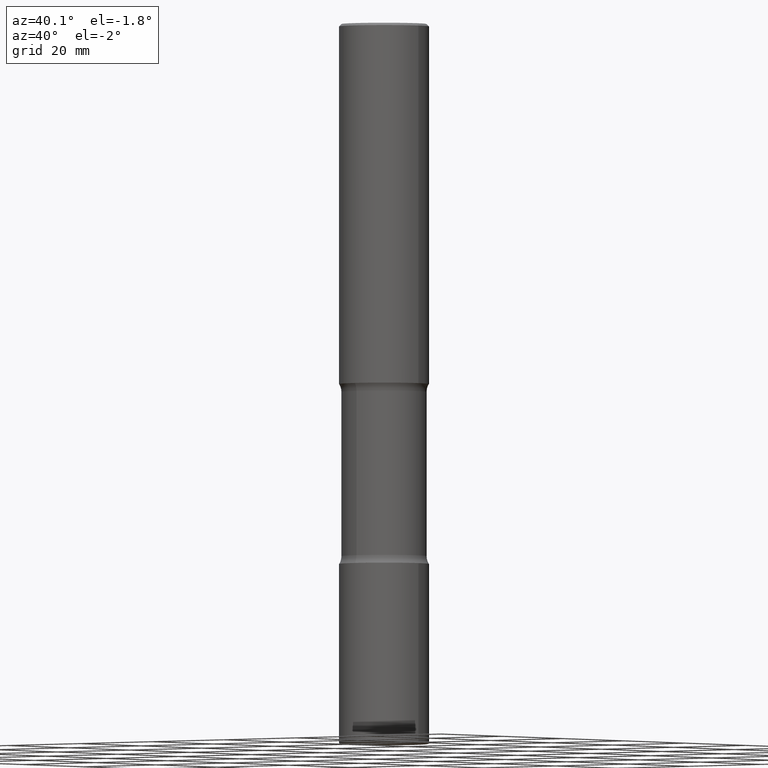
[diagram: clean part render]
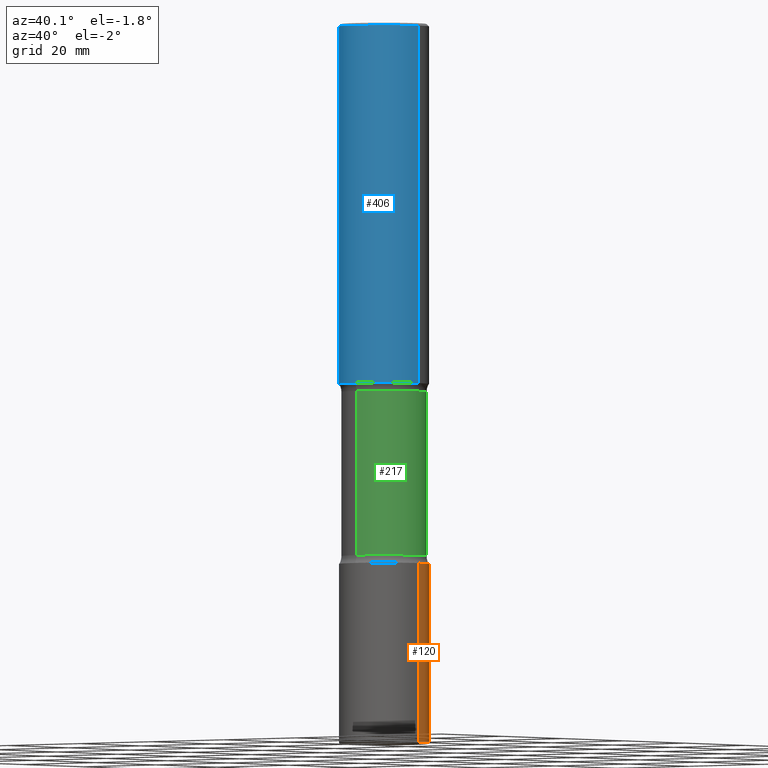
[diagram: same view with three faces highlighted in distinct colors, each labeled with its STEP entity id]
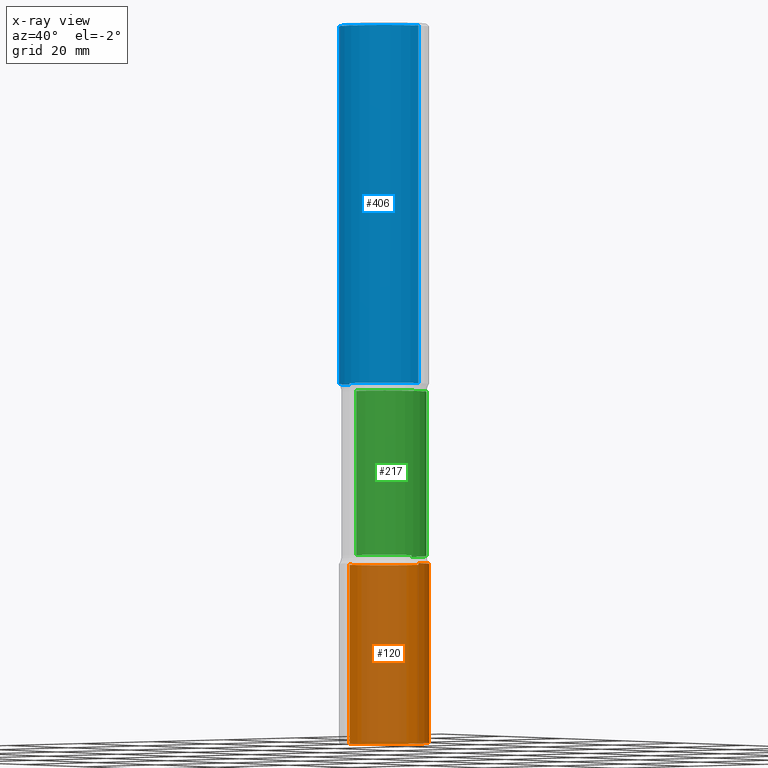
[diagram: x-ray of the same camera — body ghosted, the three highlighted faces saturated]
A machine part, auxiliary view with three faces highlighted in distinct colors.
The next image is the same camera in x-ray (body ghosted, the three faces saturated) — at least one of them is partly hidden behind the body in this view.
Their STEP definitions:

[orange] entity #120 — the highlighted cylindrical surface (partial cylindrical patch) has radius 9.525 mm, axis along (-0, 0, 1).
#7 = EDGE_CURVE ( 'NONE', #544, #146, #245, .T. ) ;
#14 = DIRECTION ( 'NONE',  ( 1.000000000000000000, -6.982962677686265922E-15, 4.876176775795935793E-29 ) ) ;
#26 = ORIENTED_EDGE ( 'NONE', *, *, #328, .F. ) ;
#38 = DIRECTION ( 'NONE',  ( -2.445468806185136597E-29, 3.491481338843145583E-15, 1.000000000000000000 ) ) ;
#89 = AXIS2_PLACEMENT_3D ( 'NONE', #149, #536, #14 ) ;
#92 = VERTEX_POINT ( 'NONE', #543 ) ;
#110 = FACE_OUTER_BOUND ( 'NONE', #314, .T. ) ;
#120 = ADVANCED_FACE ( 'NONE', ( #110 ), #295, .T. ) ;
#124 = CIRCLE ( 'NONE', #405, 0.3750000000000003886 ) ;
#140 = ORIENTED_EDGE ( 'NONE', *, *, #7, .T. ) ;
#143 = VERTEX_POINT ( 'NONE', #420 ) ;
#145 = EDGE_CURVE ( 'NONE', #92, #143, #192, .T. ) ;
#146 = VERTEX_POINT ( 'NONE', #488 ) ;
#149 = CARTESIAN_POINT ( 'NONE',  ( 0.000000000000000000, 0.000000000000000000, 0.000000000000000000 ) ) ;
#154 = CARTESIAN_POINT ( 'NONE',  ( -0.3750000000000003886, 2.664535259100378458E-15, -1.844600658845591560E-29 ) ) ;
#177 = VECTOR ( 'NONE', #409, 39.37007874015748143 ) ;
#192 = LINE ( 'NONE', #282, #177 ) ;
#196 = EDGE_CURVE ( 'NONE', #92, #544, #305, .T. ) ;
#218 = DIRECTION ( 'NONE',  ( -2.445468806185136597E-29, 3.491481338843145583E-15, 1.000000000000000000 ) ) ;
#245 = LINE ( 'NONE', #154, #526 ) ;
#250 = CARTESIAN_POINT ( 'NONE',  ( -0.3750000000000006661, -1.824943796057005747E-14, -5.989999999999999325 ) ) ;
#267 = DIRECTION ( 'NONE',  ( 1.000000000000000000, -6.982962677686265922E-15, 0.000000000000000000 ) ) ;
#282 = CARTESIAN_POINT ( 'NONE',  ( 0.3750000000000003886, -2.618611004132352383E-15, 1.828566290923477884E-29 ) ) ;
#295 = CYLINDRICAL_SURFACE ( 'NONE', #89, 0.3750000000000003886 ) ;
#305 = CIRCLE ( 'NONE', #332, 0.3750000000000002776 ) ;
#314 = EDGE_LOOP ( 'NONE', ( #364, #140, #26, #319 ) ) ;
#319 = ORIENTED_EDGE ( 'NONE', *, *, #145, .F. ) ;
#328 = EDGE_CURVE ( 'NONE', #143, #146, #124, .T. ) ;
#332 = AXIS2_PLACEMENT_3D ( 'NONE', #560, #218, #377 ) ;
#364 = ORIENTED_EDGE ( 'NONE', *, *, #196, .T. ) ;
#377 = DIRECTION ( 'NONE',  ( 1.000000000000000000, -6.982962677686267499E-15, 0.000000000000000000 ) ) ;
#405 = AXIS2_PLACEMENT_3D ( 'NONE', #519, #38, #267 ) ;
#409 = DIRECTION ( 'NONE',  ( -2.445468806185136877E-29, 3.491481338843145188E-15, 1.000000000000000000 ) ) ;
#418 = DIRECTION ( 'NONE',  ( -2.445468806185136877E-29, 3.491481338843145188E-15, 1.000000000000000000 ) ) ;
#420 = CARTESIAN_POINT ( 'NONE',  ( 0.3750000000000003886, -1.833027702892650691E-14, -4.499999999999999112 ) ) ;
#488 = CARTESIAN_POINT ( 'NONE',  ( -0.3750000000000003886, -1.564828436313191776E-14, -4.499999999999999112 ) ) ;
#519 = CARTESIAN_POINT ( 'NONE',  ( 1.100460962783311244E-28, -1.571166602479415374E-14, -4.499999999999999112 ) ) ;
#526 = VECTOR ( 'NONE', #418, 39.37007874015748143 ) ;
#536 = DIRECTION ( 'NONE',  ( -2.445468806185136597E-29, 3.491481338843145583E-15, 1.000000000000000000 ) ) ;
#543 = CARTESIAN_POINT ( 'NONE',  ( 0.3750000000000006661, -2.353258422380279265E-14, -5.989999999999999325 ) ) ;
#544 = VERTEX_POINT ( 'NONE', #250 ) ;
#560 = CARTESIAN_POINT ( 'NONE',  ( 1.464835814904896579E-28, -2.091397321967043948E-14, -5.989999999999999325 ) ) ;

[blue] entity #406 — the highlighted cylindrical surface (partial cylindrical patch) has radius 9.525 mm, axis along (-0, 0, 1).
#10 = AXIS2_PLACEMENT_3D ( 'NONE', #263, #349, #133 ) ;
#20 = VECTOR ( 'NONE', #213, 39.37007874015748143 ) ;
#22 = EDGE_LOOP ( 'NONE', ( #275, #374, #479, #73 ) ) ;
#28 = VERTEX_POINT ( 'NONE', #204 ) ;
#32 = CARTESIAN_POINT ( 'NONE',  ( 4.890937612370289799E-31, -6.982962677686315028E-17, -0.02000000000000006981 ) ) ;
#73 = ORIENTED_EDGE ( 'NONE', *, *, #440, .F. ) ;
#81 = DIRECTION ( 'NONE',  ( 1.000000000000000000, -6.982962677686265922E-15, 0.000000000000000000 ) ) ;
#88 = CYLINDRICAL_SURFACE ( 'NONE', #10, 0.3750000000000002220 ) ;
#116 = CIRCLE ( 'NONE', #188, 0.3750000000000003886 ) ;
#133 = DIRECTION ( 'NONE',  ( 1.000000000000000000, -6.982962677686266711E-15, 4.876176775795935793E-29 ) ) ;
#137 = CARTESIAN_POINT ( 'NONE',  ( -0.3750000000000001110, 2.548781377355487113E-15, -0.02000000000000006981 ) ) ;
#176 = EDGE_CURVE ( 'NONE', #528, #292, #325, .T. ) ;
#188 = AXIS2_PLACEMENT_3D ( 'NONE', #340, #555, #81 ) ;
#204 = CARTESIAN_POINT ( 'NONE',  ( -0.3750000000000003886, -2.607601562552767029E-15, -2.999999999999999112 ) ) ;
#213 = DIRECTION ( 'NONE',  ( -2.445468806185136877E-29, 3.491481338843145188E-15, 1.000000000000000000 ) ) ;
#255 = CARTESIAN_POINT ( 'NONE',  ( 0.3750000000000001110, -2.642516375941188423E-15, -0.02000000000000006981 ) ) ;
#263 = CARTESIAN_POINT ( 'NONE',  ( 0.000000000000000000, 0.000000000000000000, 0.000000000000000000 ) ) ;
#275 = ORIENTED_EDGE ( 'NONE', *, *, #365, .F. ) ;
#292 = VERTEX_POINT ( 'NONE', #255 ) ;
#325 = LINE ( 'NONE', #363, #366 ) ;
#340 = CARTESIAN_POINT ( 'NONE',  ( 7.336406418555407548E-29, -1.047444401652943320E-14, -2.999999999999999112 ) ) ;
#349 = DIRECTION ( 'NONE',  ( -2.445468806185136597E-29, 3.491481338843145583E-15, 1.000000000000000000 ) ) ;
#351 = AXIS2_PLACEMENT_3D ( 'NONE', #32, #421, #373 ) ;
#363 = CARTESIAN_POINT ( 'NONE',  ( 0.3750000000000002220, -2.618611004132351594E-15, 1.828566290923477043E-29 ) ) ;
#365 = EDGE_CURVE ( 'NONE', #28, #368, #434, .T. ) ;
#366 = VECTOR ( 'NONE', #494, 39.37007874015748143 ) ;
#368 = VERTEX_POINT ( 'NONE', #137 ) ;
#373 = DIRECTION ( 'NONE',  ( 1.000000000000000000, -6.982962677686265922E-15, 0.000000000000000000 ) ) ;
#374 = ORIENTED_EDGE ( 'NONE', *, *, #534, .T. ) ;
#406 = ADVANCED_FACE ( 'NONE', ( #556 ), #88, .T. ) ;
#421 = DIRECTION ( 'NONE',  ( -2.445468806185136597E-29, 3.491481338843145583E-15, 1.000000000000000000 ) ) ;
#434 = LINE ( 'NONE', #558, #20 ) ;
#440 = EDGE_CURVE ( 'NONE', #368, #292, #539, .T. ) ;
#470 = CARTESIAN_POINT ( 'NONE',  ( 0.3750000000000003886, -1.309305502066178637E-14, -2.999999999999999112 ) ) ;
#479 = ORIENTED_EDGE ( 'NONE', *, *, #176, .T. ) ;
#494 = DIRECTION ( 'NONE',  ( -2.445468806185136877E-29, 3.491481338843145188E-15, 1.000000000000000000 ) ) ;
#528 = VERTEX_POINT ( 'NONE', #470 ) ;
#534 = EDGE_CURVE ( 'NONE', #28, #528, #116, .T. ) ;
#539 = CIRCLE ( 'NONE', #351, 0.3750000000000001110 ) ;
#555 = DIRECTION ( 'NONE',  ( -2.445468806185136597E-29, 3.491481338843145583E-15, 1.000000000000000000 ) ) ;
#556 = FACE_OUTER_BOUND ( 'NONE', #22, .T. ) ;
#558 = CARTESIAN_POINT ( 'NONE',  ( -0.3750000000000002220, 2.664535259100377275E-15, -1.844600658845590719E-29 ) ) ;

[green] entity #217 — the highlighted cylindrical surface (partial cylindrical patch) has radius 9.0488 mm, axis along (0, -0, -1).
#9 = VECTOR ( 'NONE', #209, 39.37007874015748143 ) ;
#25 = CARTESIAN_POINT ( 'NONE',  ( 2.487680453925840195E-15, 0.3562499999999844680, -4.434152164044670386 ) ) ;
#30 = DIRECTION ( 'NONE',  ( 2.508247471065963170E-29, -3.401578717594097873E-15, -1.000000000000000000 ) ) ;
#34 = CARTESIAN_POINT ( 'NONE',  ( -2.444052411705960129E-15, -0.3562500000000208278, -5.999999999999998224 ) ) ;
#65 = CARTESIAN_POINT ( 'NONE',  ( -2.508369580435107128E-15, -0.3562500000000154987, -4.434152164044668609 ) ) ;
#66 = CARTESIAN_POINT ( 'NONE',  ( 2.487680453925806274E-15, 0.3562499999999891309, -3.065847835955330503 ) ) ;
#77 = AXIS2_PLACEMENT_3D ( 'NONE', #390, #30, #301 ) ;
#79 = DIRECTION ( 'NONE',  ( 2.508247471065963170E-29, -3.401578717594097873E-15, -1.000000000000000000 ) ) ;
#80 = DIRECTION ( 'NONE',  ( 6.982962677686265133E-15, 1.000000000000000000, -3.067338098149347905E-15 ) ) ;
#126 = CARTESIAN_POINT ( 'NONE',  ( -2.508369580435144205E-15, -0.3562500000000108358, -3.065847835955328282 ) ) ;
#130 = VERTEX_POINT ( 'NONE', #66 ) ;
#151 = VERTEX_POINT ( 'NONE', #25 ) ;
#152 = DIRECTION ( 'NONE',  ( 6.982962677686265133E-15, 1.000000000000000000, -3.067338098149347905E-15 ) ) ;
#186 = CIRCLE ( 'NONE', #500, 0.3562500000000000111 ) ;
#209 = DIRECTION ( 'NONE',  ( 2.508247471065963170E-29, -3.401578717594097873E-15, -1.000000000000000000 ) ) ;
#217 = ADVANCED_FACE ( 'NONE', ( #343 ), #416, .T. ) ;
#237 = VERTEX_POINT ( 'NONE', #65 ) ;
#246 = DIRECTION ( 'NONE',  ( 2.508247471065963170E-29, -3.401578717594097873E-15, -1.000000000000000000 ) ) ;
#257 = CARTESIAN_POINT ( 'NONE',  ( 2.487680453925879638E-15, 0.3562499999999791389, -6.000000000000000888 ) ) ;
#279 = EDGE_CURVE ( 'NONE', #130, #481, #186, .T. ) ;
#293 = EDGE_CURVE ( 'NONE', #481, #237, #327, .T. ) ;
#301 = DIRECTION ( 'NONE',  ( 6.982962677686265133E-15, 1.000000000000000000, -3.067338098149347905E-15 ) ) ;
#327 = LINE ( 'NONE', #34, #9 ) ;
#343 = FACE_OUTER_BOUND ( 'NONE', #450, .T. ) ;
#345 = LINE ( 'NONE', #257, #360 ) ;
#360 = VECTOR ( 'NONE', #246, 39.37007874015748143 ) ;
#390 = CARTESIAN_POINT ( 'NONE',  ( 1.083944695982298980E-28, -1.548767942740887449E-14, -4.434152164044669497 ) ) ;
#416 = CYLINDRICAL_SURFACE ( 'NONE', #451, 0.3562500000000000111 ) ;
#419 = DIRECTION ( 'NONE',  ( 2.508247471065963170E-29, -3.401578717594097873E-15, -1.000000000000000000 ) ) ;
#426 = EDGE_CURVE ( 'NONE', #130, #151, #345, .T. ) ;
#450 = EDGE_LOOP ( 'NONE', ( #538, #511, #531, #457 ) ) ;
#451 = AXIS2_PLACEMENT_3D ( 'NONE', #516, #419, #80 ) ;
#457 = ORIENTED_EDGE ( 'NONE', *, *, #426, .F. ) ;
#481 = VERTEX_POINT ( 'NONE', #126 ) ;
#500 = AXIS2_PLACEMENT_3D ( 'NONE', #508, #79, #152 ) ;
#508 = CARTESIAN_POINT ( 'NONE',  ( 7.407401089244291879E-29, -1.083328454578828421E-14, -3.065847835955329614 ) ) ;
#511 = ORIENTED_EDGE ( 'NONE', *, *, #293, .T. ) ;
#516 = CARTESIAN_POINT ( 'NONE',  ( 1.476698083443205790E-28, -2.081403410118529621E-14, -5.999999999999999112 ) ) ;
#531 = ORIENTED_EDGE ( 'NONE', *, *, #547, .F. ) ;
#538 = ORIENTED_EDGE ( 'NONE', *, *, #279, .T. ) ;
#547 = EDGE_CURVE ( 'NONE', #151, #237, #557, .T. ) ;
#557 = CIRCLE ( 'NONE', #77, 0.3562500000000000111 ) ;